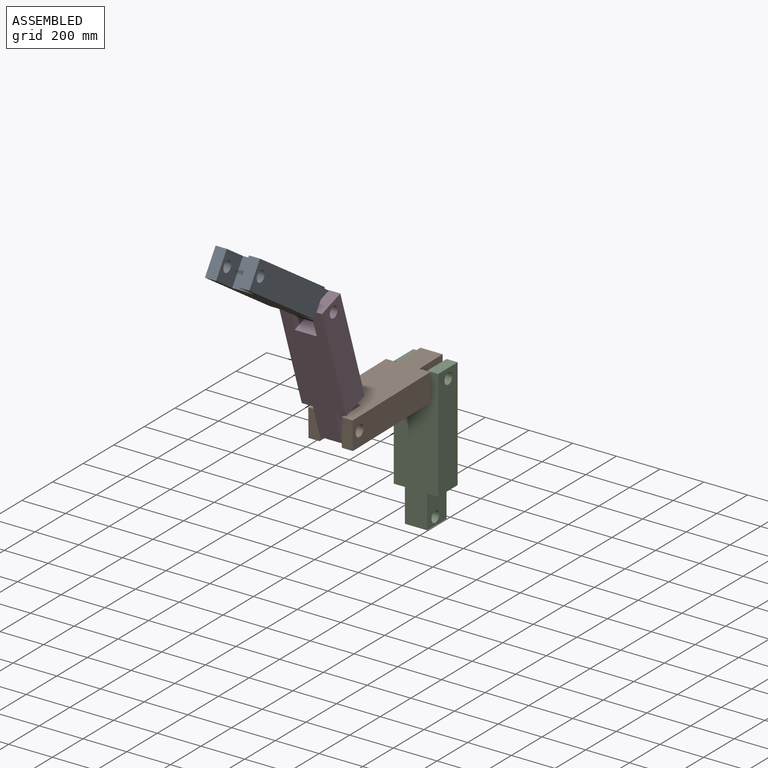
[diagram: assembled view]
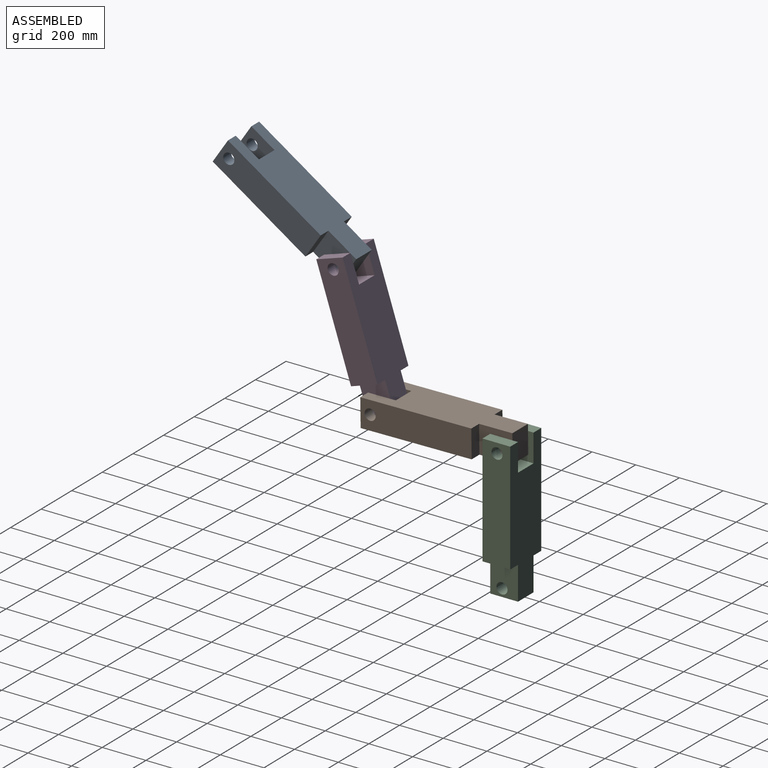
[diagram: assembled view, second angle]
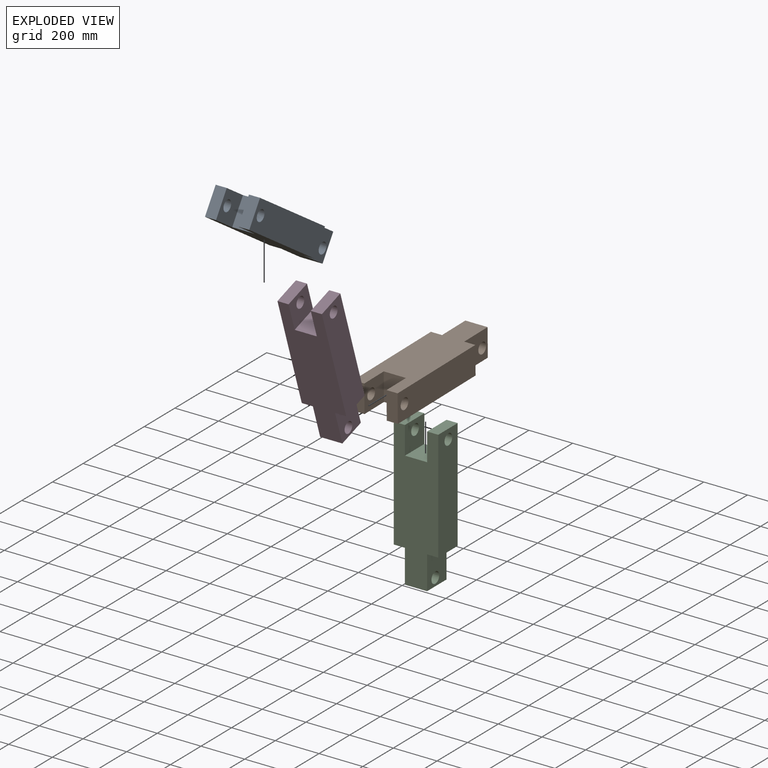
[diagram: exploded view]
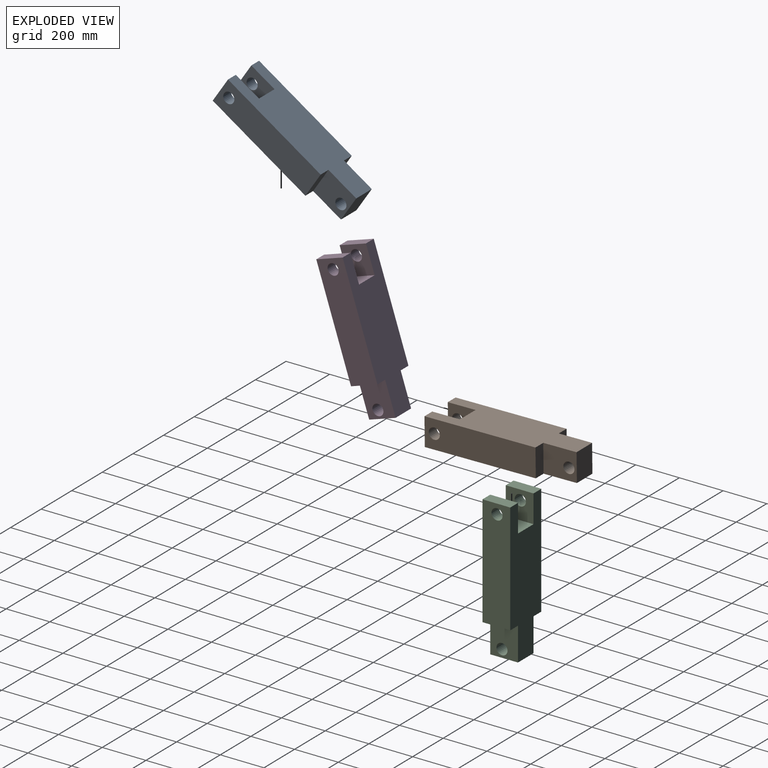
[diagram: exploded view, second angle]
ASSEMBLY  parts=4 mates=3
PART A: 17 faces, bbox 203.2x127x660.4 mm
  f0: plane 127x50.8mm, normal (0,0,1), area 6451.6mm2, adj f1,f11,f12,f13
  f1: plane 508x127mm, normal (-1,0,0), area 62489.2mm2, adj f0,f2,f12,f13,f14
  f2: plane 127x50.8mm, normal (0,0,-1), area 6451.6mm2, adj f1,f3,f12,f13
  f3: plane 152.4x127mm, normal (-1,0,0), area 17328mm2, adj f2,f4,f12,f13,f16
  f4: plane 127x101.6mm, normal (0,0,-1), area 12903.2mm2, adj f3,f5,f12,f13
  f5: plane 152.4x127mm, normal (1,0,0), area 17328mm2, adj f4,f6,f12,f13,f16
  f6: plane 127x50.8mm, normal (0,0,-1), area 6451.6mm2, adj f5,f7,f12,f13
  f7: plane 508x127mm, normal (1,0,0), area 62489.2mm2, adj f6,f8,f12,f13,f15
  f8: plane 127x50.8mm, normal (0,0,1), area 6451.6mm2, adj f7,f9,f12,f13
  f9: plane 127x127mm, normal (-1,0,0), area 14102.2mm2, adj f8,f10,f12,f13,f15
  f10: plane 127x101.6mm, normal (0,0,1), area 12903.2mm2, adj f9,f11,f12,f13
  f11: plane 127x127mm, normal (1,0,0), area 14102.2mm2, adj f0,f10,f12,f13,f14
  f12: plane 660.4x203.2mm, normal (0,-1,0), area 105806.2mm2, adj f0,f1,f2,f3,f4,f5,f6,f7
  f13: plane 660.4x203.2mm, normal (0,1,0), area 105806.2mm2, adj f0,f1,f2,f3,f4,f5,f6,f7
  f14: cylinder r=25.4mm len=50.8mm, axis (-1,0,0), area 8107.3mm2, adj f1,f11
  f15: cylinder r=25.4mm len=50.8mm, axis (-1,0,0), area 8107.3mm2, adj f7,f9
  f16: cylinder r=25.4mm len=101.6mm, axis (-1,0,0), area 16214.6mm2, adj f3,f5
PART B: same geometry as A
PART C: same geometry as A
PART D: same geometry as A
PLACE A rot(axis=(1,0,0),56.6deg) t=(-301.47,-1107.88,1010.81)mm
PLACE B rot(axis=(1,0,0),90.7deg) t=(-301.47,-443.19,312.76)mm
PLACE C t=(-301.47,-116.43,-72.11)mm fixed
PLACE D rot(axis=(1,0,0),18.2deg) t=(-301.47,-770.79,523.28)mm
MATE revolute C.f14 <-> B.f16  axis (1,0,0) through (-356.74,-176.94,242.83)mm
MATE revolute B.f14 <-> D.f16  axis (1,0,0) through (-356.74,-757.35,248.33)mm
MATE revolute D.f14 <-> A.f16  axis (-1,0,0) through (-255.14,-926.78,803.49)mm
